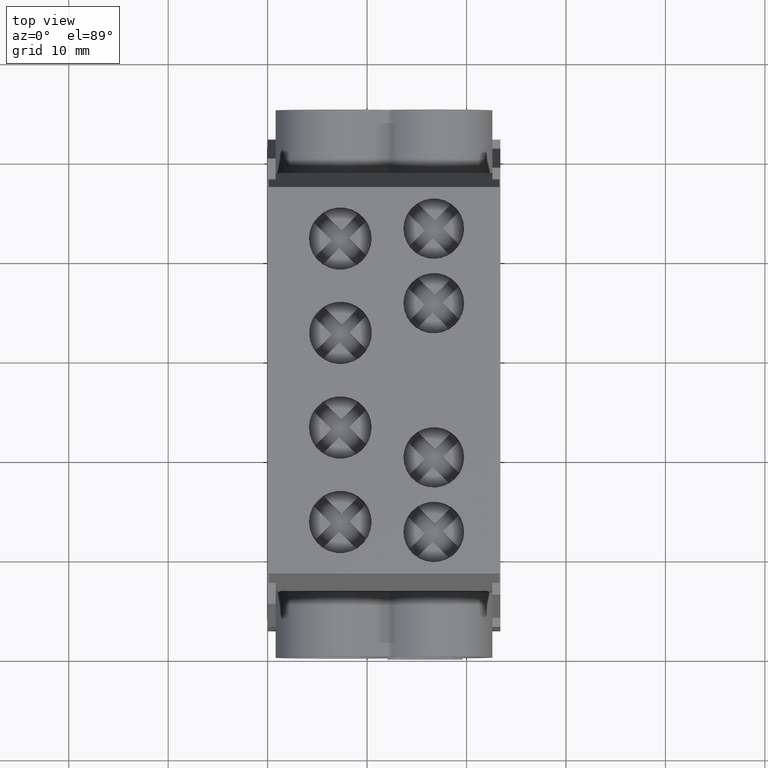
[diagram: clean part render]
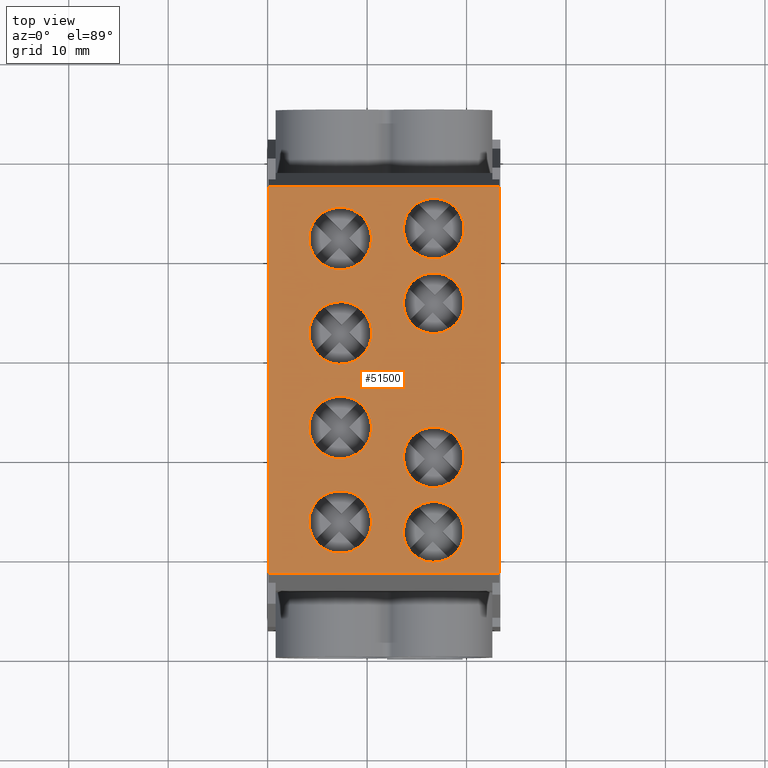
[diagram: same view with one face highlighted and labeled with its STEP entity id]
A machine part, top view. The second image highlights one B-rep face of the part: STEP entity #51500.
In plain terms, the highlighted planar face has unit normal (0, 0, -1).
Its self-contained STEP definition (entity closure, byte-faithful):
#48080=CARTESIAN_POINT('',(11.6,19.4361970914524,29.3));
#48090=VERTEX_POINT('',#48080);
#48120=CARTESIAN_POINT('',(1.77635683940025E-15,19.4361970914524,29.3));
#48130=DIRECTION('',(1.,0.,0.));
#48140=VECTOR('',#48130,1.);
#48150=LINE('',#48120,#48140);
#48160=CARTESIAN_POINT('',(-11.6,19.4361970914524,29.3));
#48170=VERTEX_POINT('',#48160);
#48180=EDGE_CURVE('',#48170,#48090,#48150,.T.);
#48750=CARTESIAN_POINT('',(-11.6,0.,29.3));
#48760=DIRECTION('',(0.,1.,1.22108605138914E-16));
#48770=VECTOR('',#48760,1.);
#48780=LINE('',#48750,#48770);
#48790=CARTESIAN_POINT('',(-11.6,-19.4361970914524,29.3));
#48800=VERTEX_POINT('',#48790);
#48810=EDGE_CURVE('',#48800,#48170,#48780,.T.);
#49370=CARTESIAN_POINT('',(11.6,-19.4361970914524,29.3));
#49380=VERTEX_POINT('',#49370);
#49470=CARTESIAN_POINT('',(1.77635683940025E-15,-19.4361970914524,29.3))
;
#49480=DIRECTION('',(1.,0.,0.));
#49490=VECTOR('',#49480,1.);
#49500=LINE('',#49470,#49490);
#49510=EDGE_CURVE('',#48800,#49380,#49500,.T.);
#49710=CARTESIAN_POINT('',(11.6,0.,29.3));
#49720=DIRECTION('',(0.,-1.,-1.22108605138914E-16));
#49730=VECTOR('',#49720,1.);
#49740=LINE('',#49710,#49730);
#49750=EDGE_CURVE('',#48090,#49380,#49740,.T.);
#49870=CARTESIAN_POINT('',(11.6,-17.7579978290979,29.3));
#49880=DIRECTION('',(0.,1.22108605138914E-16,-1.));
#49890=DIRECTION('',(0.,1.,1.22108605138914E-16));
#49900=AXIS2_PLACEMENT_3D('',#49870,#49880,#49890);
#49910=PLANE('',#49900);
#49920=CARTESIAN_POINT('',(-4.4,-4.75,29.3));
#49930=DIRECTION('',(0.,-1.22108605138914E-16,1.));
#49940=DIRECTION('',(1.,0.,0.));
#49950=AXIS2_PLACEMENT_3D('',#49920,#49930,#49940);
#49960=CIRCLE('',#49950,3.15);
#49970=CARTESIAN_POINT('',(-2.72328185878219,-7.41666763487899,29.3));
#49980=VERTEX_POINT('',#49970);
#49990=CARTESIAN_POINT('',(-1.25,-4.75,29.3));
#50000=VERTEX_POINT('',#49990);
#50010=EDGE_CURVE('',#49980,#50000,#49960,.T.);
#50020=ORIENTED_EDGE('',*,*,#50010,.F.);
#50030=CARTESIAN_POINT('',(-7.55,-4.75,29.3));
#50040=VERTEX_POINT('',#50030);
#50050=EDGE_CURVE('',#50000,#50040,#49960,.T.);
#50060=ORIENTED_EDGE('',*,*,#50050,.F.);
#50070=EDGE_CURVE('',#50040,#49980,#49960,.T.);
#50080=ORIENTED_EDGE('',*,*,#50070,.F.);
#50090=EDGE_LOOP('',(#50080,#50060,#50020));
#50100=FACE_BOUND('',#50090,.T.);
#50110=CARTESIAN_POINT('',(5.,-7.75,29.3));
#50120=DIRECTION('',(0.,-1.22108605138914E-16,1.));
#50130=DIRECTION('',(1.,0.,0.));
#50140=AXIS2_PLACEMENT_3D('',#50110,#50120,#50130);
#50150=CIRCLE('',#50140,3.05);
#50160=CARTESIAN_POINT('',(7.59408169979892,-9.35413220613775,29.3));
#50170=VERTEX_POINT('',#50160);
#50180=CARTESIAN_POINT('',(8.05,-7.75,29.3));
#50190=VERTEX_POINT('',#50180);
#50200=EDGE_CURVE('',#50170,#50190,#50150,.T.);
#50210=ORIENTED_EDGE('',*,*,#50200,.F.);
#50220=CARTESIAN_POINT('',(1.95,-7.75,29.3));
#50230=VERTEX_POINT('',#50220);
#50240=EDGE_CURVE('',#50190,#50230,#50150,.T.);
#50250=ORIENTED_EDGE('',*,*,#50240,.F.);
#50260=EDGE_CURVE('',#50230,#50170,#50150,.T.);
#50270=ORIENTED_EDGE('',*,*,#50260,.F.);
#50280=EDGE_LOOP('',(#50270,#50250,#50210));
#50290=FACE_BOUND('',#50280,.T.);
#50300=CARTESIAN_POINT('',(5.,7.75,29.3));
#50310=DIRECTION('',(0.,-1.22108605138914E-16,1.));
#50320=DIRECTION('',(1.,0.,0.));
#50330=AXIS2_PLACEMENT_3D('',#50300,#50310,#50320);
#50340=CIRCLE('',#50330,3.05);
#50350=CARTESIAN_POINT('',(7.59408169979892,6.14586779386225,29.3));
#50360=VERTEX_POINT('',#50350);
#50370=CARTESIAN_POINT('',(8.05,7.75,29.3));
#50380=VERTEX_POINT('',#50370);
#50390=EDGE_CURVE('',#50360,#50380,#50340,.T.);
#50400=ORIENTED_EDGE('',*,*,#50390,.F.);
#50410=CARTESIAN_POINT('',(1.95,7.75,29.3));
#50420=VERTEX_POINT('',#50410);
#50430=EDGE_CURVE('',#50380,#50420,#50340,.T.);
#50440=ORIENTED_EDGE('',*,*,#50430,.F.);
#50450=EDGE_CURVE('',#50420,#50360,#50340,.T.);
#50460=ORIENTED_EDGE('',*,*,#50450,.F.);
#50470=EDGE_LOOP('',(#50460,#50440,#50400));
#50480=FACE_BOUND('',#50470,.T.);
#50490=CARTESIAN_POINT('',(-4.4,-14.25,29.3));
#50500=DIRECTION('',(0.,-1.22108605138914E-16,1.));
#50510=DIRECTION('',(1.,0.,0.));
#50520=AXIS2_PLACEMENT_3D('',#50490,#50500,#50510);
#50530=CIRCLE('',#50520,3.15);
#50540=CARTESIAN_POINT('',(-2.59573750970647,-11.6679200504013,29.3));
#50550=VERTEX_POINT('',#50540);
#50560=CARTESIAN_POINT('',(-7.55,-14.25,29.3));
#50570=VERTEX_POINT('',#50560);
#50580=EDGE_CURVE('',#50550,#50570,#50530,.T.);
#50590=ORIENTED_EDGE('',*,*,#50580,.F.);
#50600=CARTESIAN_POINT('',(-1.25,-14.25,29.3));
#50610=VERTEX_POINT('',#50600);
#50620=EDGE_CURVE('',#50570,#50610,#50530,.T.);
#50630=ORIENTED_EDGE('',*,*,#50620,.F.);
#50640=EDGE_CURVE('',#50610,#50550,#50530,.T.);
#50650=ORIENTED_EDGE('',*,*,#50640,.F.);
#50660=EDGE_LOOP('',(#50650,#50630,#50590));
#50670=FACE_BOUND('',#50660,.T.);
#50680=CARTESIAN_POINT('',(-4.4,14.25,29.3));
#50690=DIRECTION('',(0.,-1.22108605138914E-16,1.));
#50700=DIRECTION('',(1.,0.,0.));
#50710=AXIS2_PLACEMENT_3D('',#50680,#50690,#50700);
#50720=CIRCLE('',#50710,3.15);
#50730=CARTESIAN_POINT('',(-2.59573750970647,16.8320799495987,29.3));
#50740=VERTEX_POINT('',#50730);
#50750=CARTESIAN_POINT('',(-7.55,14.25,29.3));
#50760=VERTEX_POINT('',#50750);
#50770=EDGE_CURVE('',#50740,#50760,#50720,.T.);
#50780=ORIENTED_EDGE('',*,*,#50770,.F.);
#50790=CARTESIAN_POINT('',(-1.25,14.25,29.3));
#50800=VERTEX_POINT('',#50790);
#50810=EDGE_CURVE('',#50760,#50800,#50720,.T.);
#50820=ORIENTED_EDGE('',*,*,#50810,.F.);
#50830=EDGE_CURVE('',#50800,#50740,#50720,.T.);
#50840=ORIENTED_EDGE('',*,*,#50830,.F.);
#50850=EDGE_LOOP('',(#50840,#50820,#50780));
#50860=FACE_BOUND('',#50850,.T.);
#50870=CARTESIAN_POINT('',(5.,15.25,29.3));
#50880=DIRECTION('',(0.,-1.22108605138914E-16,1.));
#50890=DIRECTION('',(1.,0.,0.));
#50900=AXIS2_PLACEMENT_3D('',#50870,#50880,#50890);
#50910=CIRCLE('',#50900,3.05);
#50920=CARTESIAN_POINT('',(5.,12.2,29.3));
#50930=VERTEX_POINT('',#50920);
#50940=CARTESIAN_POINT('',(8.05,15.25,29.3));
#50950=VERTEX_POINT('',#50940);
#50960=EDGE_CURVE('',#50930,#50950,#50910,.T.);
#50970=ORIENTED_EDGE('',*,*,#50960,.F.);
#50980=CARTESIAN_POINT('',(1.95,15.25,29.3));
#50990=VERTEX_POINT('',#50980);
#51000=EDGE_CURVE('',#50950,#50990,#50910,.T.);
#51010=ORIENTED_EDGE('',*,*,#51000,.F.);
#51020=EDGE_CURVE('',#50990,#50930,#50910,.T.);
#51030=ORIENTED_EDGE('',*,*,#51020,.F.);
#51040=EDGE_LOOP('',(#51030,#51010,#50970));
#51050=FACE_BOUND('',#51040,.T.);
#51060=CARTESIAN_POINT('',(-4.3777866094087,4.75920108764921,29.3));
#51070=DIRECTION('',(-5.55111512312579E-17,-1.77619756370172E-16,1.));
#51080=DIRECTION('',(0.707106781186548,0.707106781186547,
1.64848445669146E-16));
#51090=AXIS2_PLACEMENT_3D('',#51060,#51070,#51080);
#51100=CIRCLE('',#51090,3.15);
#51110=CARTESIAN_POINT('',(-7.52685700249766,4.68267880742605,29.3));
#51120=VERTEX_POINT('',#51110);
#51130=CARTESIAN_POINT('',(-6.60517297014632,2.53181472691159,29.3));
#51140=VERTEX_POINT('',#51130);
#51150=EDGE_CURVE('',#51120,#51140,#51100,.T.);
#51160=ORIENTED_EDGE('',*,*,#51150,.F.);
#51170=CARTESIAN_POINT('',(-2.15040024867107,6.98658744838684,29.3));
#51180=VERTEX_POINT('',#51170);
#51190=EDGE_CURVE('',#51140,#51180,#51100,.T.);
#51200=ORIENTED_EDGE('',*,*,#51190,.F.);
#51210=EDGE_CURVE('',#51180,#51120,#51100,.T.);
#51220=ORIENTED_EDGE('',*,*,#51210,.F.);
#51230=EDGE_LOOP('',(#51220,#51200,#51160));
#51240=FACE_BOUND('',#51230,.T.);
#51250=CARTESIAN_POINT('',(5.,-15.25,29.3));
#51260=DIRECTION('',(0.,-1.22108605138914E-16,1.));
#51270=DIRECTION('',(1.,0.,0.));
#51280=AXIS2_PLACEMENT_3D('',#51250,#51260,#51270);
#51290=CIRCLE('',#51280,3.05);
#51300=CARTESIAN_POINT('',(2.48977092678775,-16.982411613907,29.3));
#51310=VERTEX_POINT('',#51300);
#51320=CARTESIAN_POINT('',(8.05,-15.25,29.3));
#51330=VERTEX_POINT('',#51320);
#51340=EDGE_CURVE('',#51310,#51330,#51290,.T.);
#51350=ORIENTED_EDGE('',*,*,#51340,.F.);
#51360=CARTESIAN_POINT('',(1.95,-15.25,29.3));
#51370=VERTEX_POINT('',#51360);
#51380=EDGE_CURVE('',#51330,#51370,#51290,.T.);
#51390=ORIENTED_EDGE('',*,*,#51380,.F.);
#51400=EDGE_CURVE('',#51370,#51310,#51290,.T.);
#51410=ORIENTED_EDGE('',*,*,#51400,.F.);
#51420=EDGE_LOOP('',(#51410,#51390,#51350));
#51430=FACE_BOUND('',#51420,.T.);
#51440=ORIENTED_EDGE('',*,*,#49750,.F.);
#51450=ORIENTED_EDGE('',*,*,#49510,.T.);
#51460=ORIENTED_EDGE('',*,*,#48810,.F.);
#51470=ORIENTED_EDGE('',*,*,#48180,.F.);
#51480=EDGE_LOOP('',(#51470,#51460,#51450,#51440));
#51490=FACE_OUTER_BOUND('',#51480,.T.);
#51500=ADVANCED_FACE('',(#50100,#50290,#50480,#50670,#50860,#51050,
#51240,#51430,#51490),#49910,.F.);